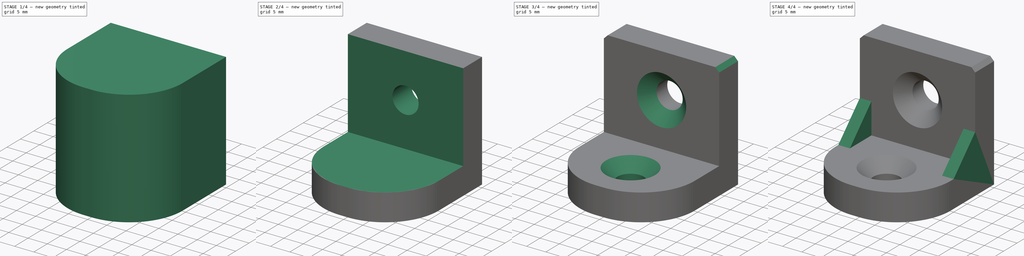
[diagram: build sequence overview — one tinted view per stage of 4, left to right]
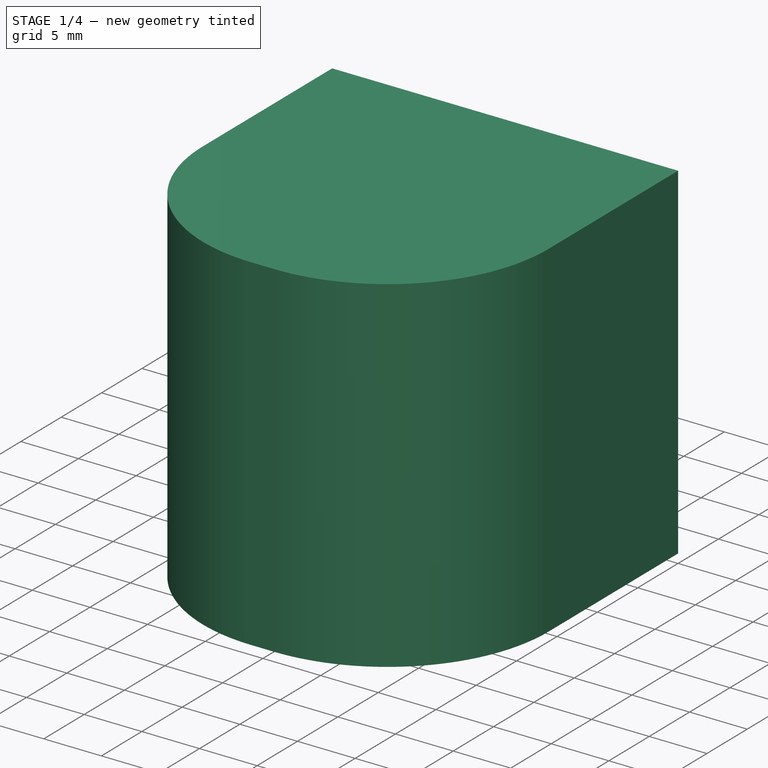
[diagram: stage 1 of 4 — iso view after this stage's code; geometry added in this stage tinted green]
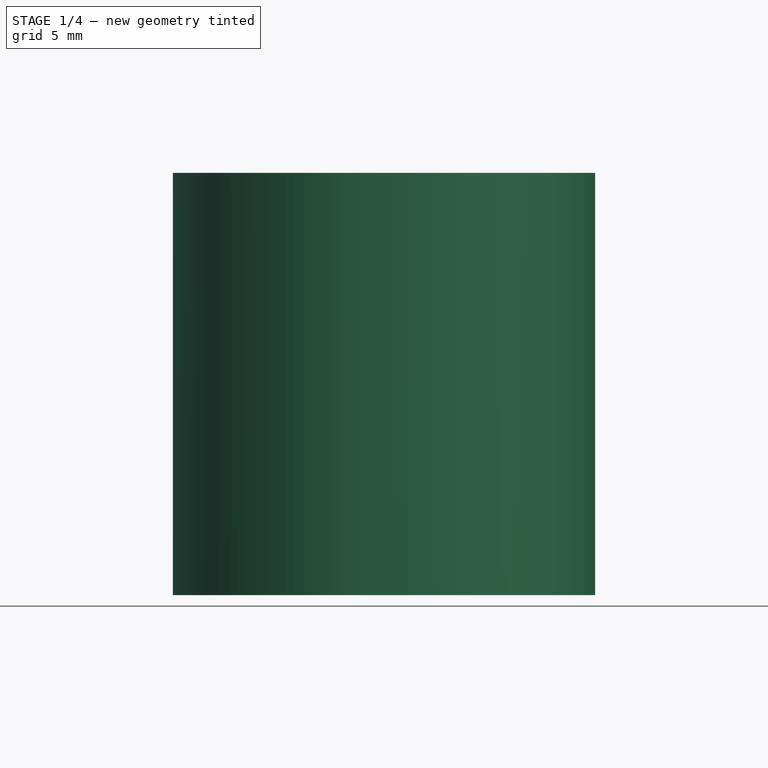
[diagram: stage 1 of 4 — front view after this stage's code; geometry added in this stage tinted green]
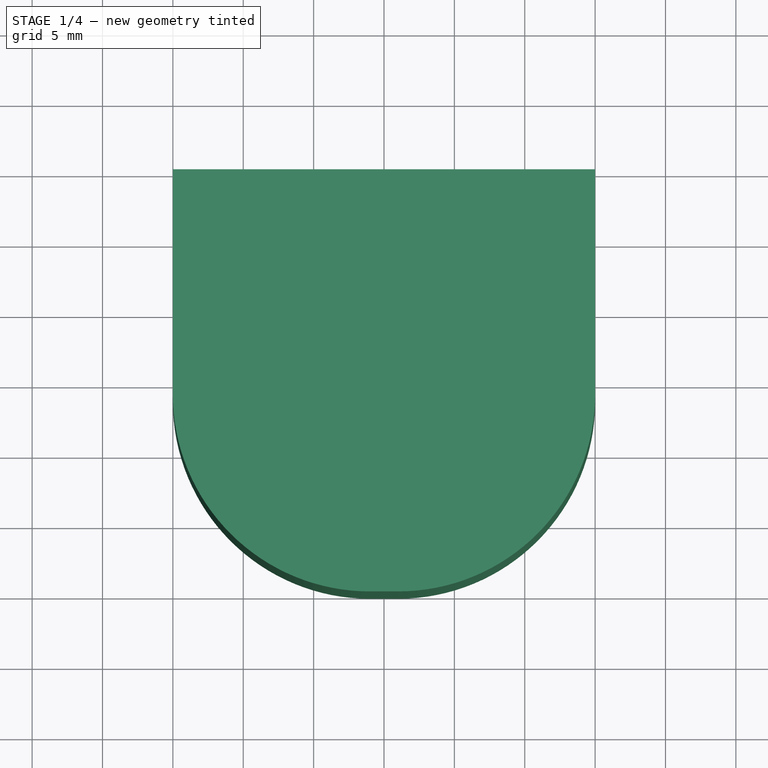
[diagram: stage 1 of 4 — top view after this stage's code; geometry added in this stage tinted green]
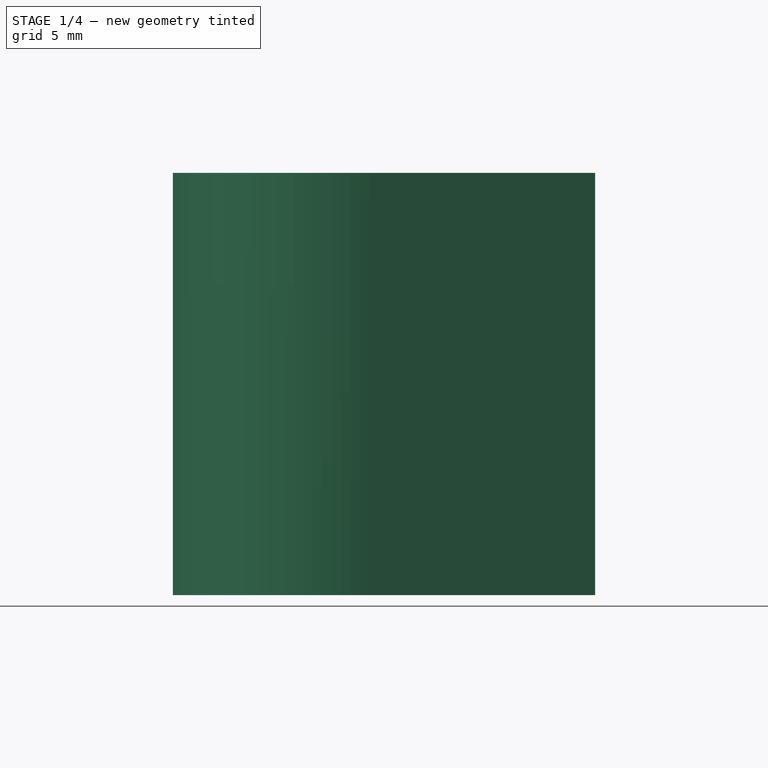
[diagram: stage 1 of 4 — right view after this stage's code; geometry added in this stage tinted green]
FCSTD DOCUMENT  (FreeCAD 1.0R39319 (Git))
Label: 3030__Alm Round Gusset
License: All rights reserved
LicenseURL: https://en.wikipedia.org/wiki/All_rights_reserved
objects: Sketcher::SketchObject×5, PartDesign::Pocket×3, PartDesign::Pad×2, PartDesign::Chamfer×2, PartDesign::Fillet×1, PartDesign::SubtractiveBox×1, PartDesign::Body×1
note: 38 computed .brp shape members not serialized (recipe doc carries the construction recipe); baked Part::Feature solids carry a one-line shape summary decoded from their .brp

FEATURE [Sketcher::SketchObject] Sketch
  ArcFitTolerance = 1e-06
  AttachmentSupport = -> [XZ_Plane]
  FullyConstrained = true
  MakeInternals = false
  MapMode = 5
  Placement = pos=(0,0,0) rot=(1,0,0;1.5708rad)
  sketch-geometry (4):
    g0: LineSegment StartX=-15 StartY=30 StartZ=0 EndX=-15 EndY=0 EndZ=0
    g1: LineSegment StartX=-15 StartY=0 StartZ=0 EndX=15 EndY=0 EndZ=0
    g2: LineSegment StartX=15 StartY=0 StartZ=0 EndX=15 EndY=30 EndZ=0
    g3: LineSegment StartX=15 StartY=30 StartZ=0 EndX=-15 EndY=30 EndZ=0
  constraints (11):
    c: Coincident(g0,g1)
    c: Coincident(g1,g2)
    c: Coincident(g2,g3)
    c: Coincident(g3,g0)
    c: Vertical(g0)
    c: Vertical(g2)
    c: Horizontal(g1)
    c: Horizontal(g3)
    c: Distance(g0,g2) = 30
    c: Distance(g1,g3) = 30
    c: Symmetric(g1,g0,g-1)
FEATURE [PartDesign::Pad] Pad
  Direction = (0,-1,2e-16)
  Length = 30
  Length2 = 10
  Placement = pos=(0,0,0) rot=(1,0,0;1.5708rad)
  Profile = -> Sketch
  ReferenceAxis = -> Sketch [N_Axis]
  Refine = true
  Suppressed = false
  Type = 0
FEATURE [PartDesign::Fillet] Fillet
  Base = -> Pad [Edge10,Edge4]
  BaseFeature = -> Pad
  Placement = pos=(0,0,0) rot=(1,0,0;1.5708rad)
  Radius = 14
  Refine = true
  SupportTransform = false
  Suppressed = false
  UseAllEdges = false
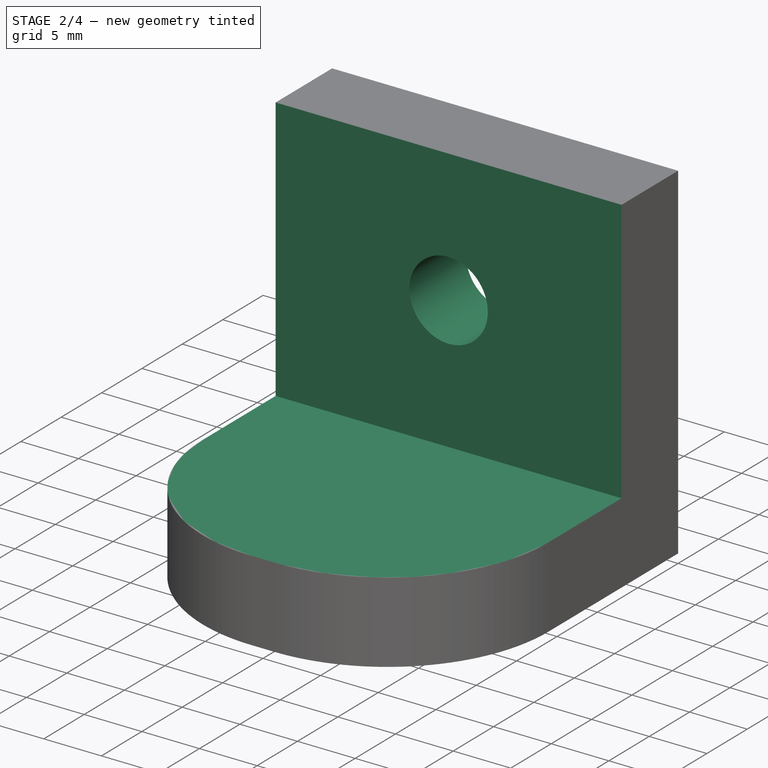
[diagram: stage 2 of 4 — iso view after this stage's code; geometry added in this stage tinted green]
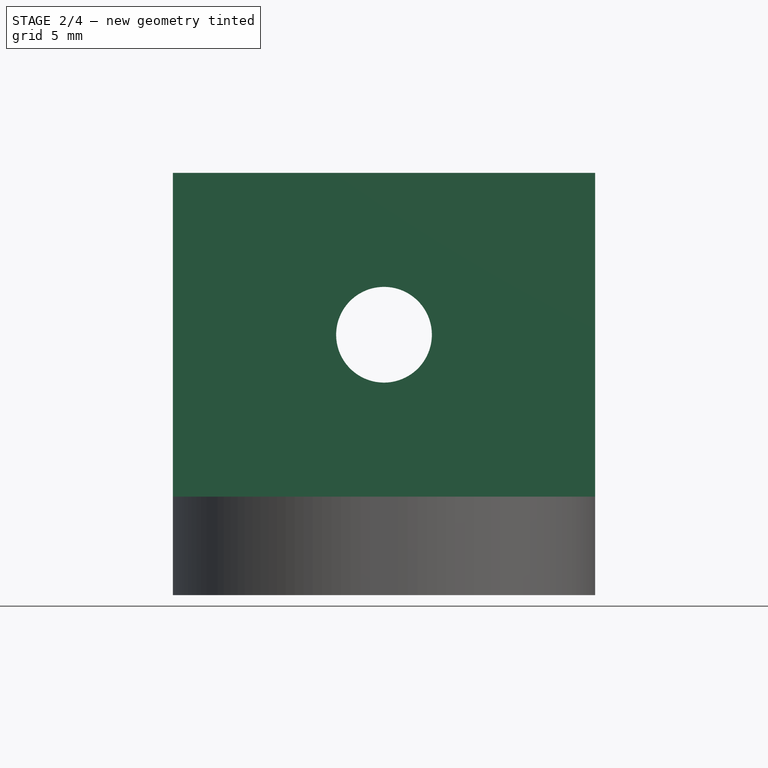
[diagram: stage 2 of 4 — front view after this stage's code; geometry added in this stage tinted green]
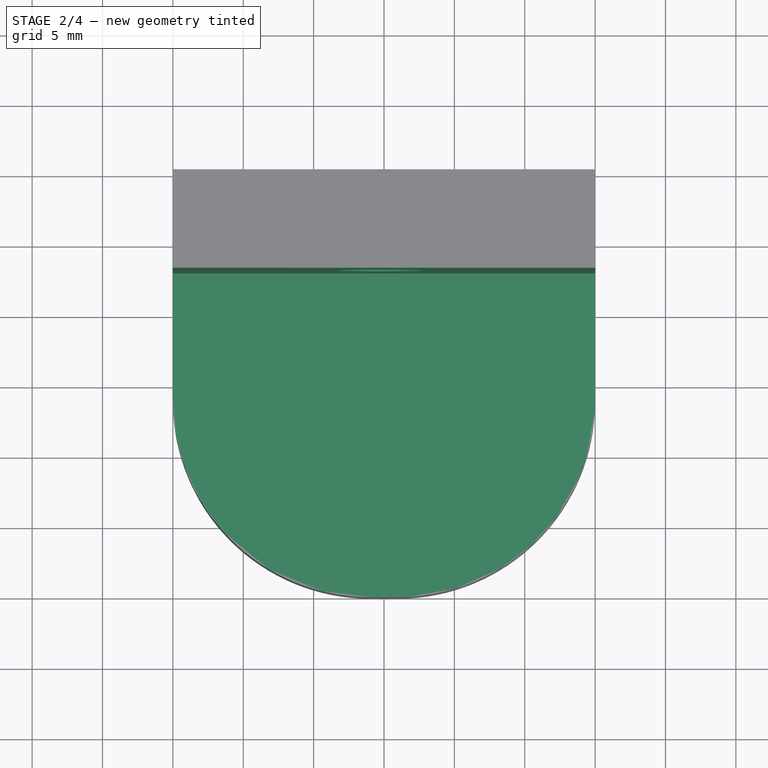
[diagram: stage 2 of 4 — top view after this stage's code; geometry added in this stage tinted green]
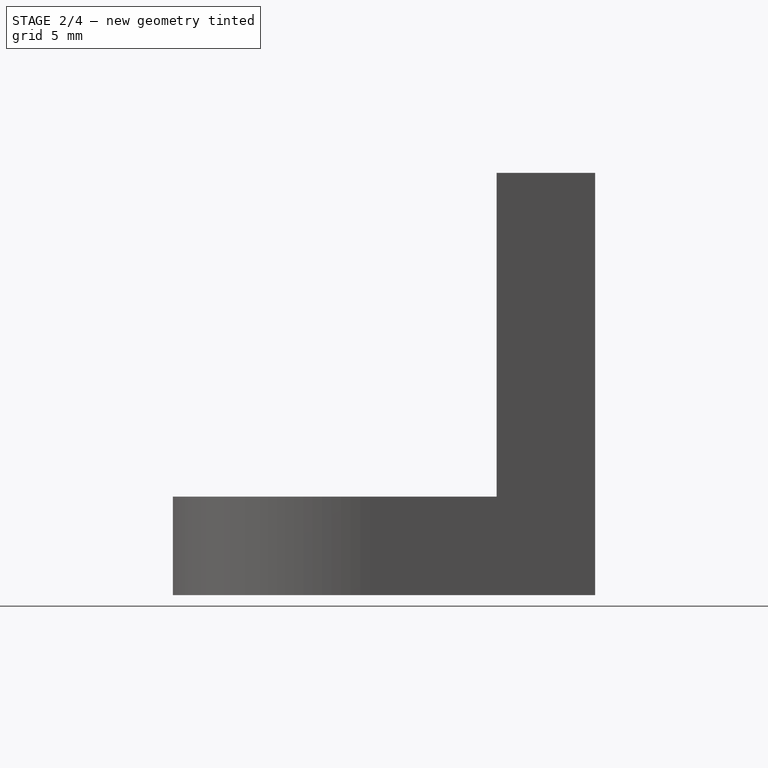
[diagram: stage 2 of 4 — right view after this stage's code; geometry added in this stage tinted green]
FEATURE [PartDesign::SubtractiveBox] Box
  AttacherType = Attacher::AttachEngine3D
  AttachmentOffset = pos=(-15,7,7) rot=(0,0,1;0rad)
  AttachmentSupport = -> [Fillet]
  BaseFeature = -> Fillet
  Height = 30
  Length = 30
  MapMode = 2
  Placement = pos=(-15,-7,7) rot=(1,0,0;1.5708rad)
  Refine = true
  Suppressed = false
  Width = 30
FEATURE [Sketcher::SketchObject] Sketch001
  ArcFitTolerance = 1e-06
  AttachmentOffset = pos=(15,11.5,0) rot=(0,0,1;0rad)
  AttachmentSupport = -> [Box]
  FullyConstrained = true
  MakeInternals = false
  MapMode = 5
  Placement = pos=(0,-7,18.5) rot=(1,0,0;1.5708rad)
  sketch-geometry (1):
    g0: Circle CenterX=0 CenterY=0 CenterZ=0 NormalX=0 NormalY=0 NormalZ=1 AngleXU=0 Radius=3.4
  constraints (2):
    c: Diameter(g0) = 6.8
    c: Coincident(g0,g-1)
FEATURE [PartDesign::Pocket] Pocket
  BaseFeature = -> Box
  Direction = (0,1,-2e-16)
  Length = 5
  Length2 = 5
  Placement = pos=(-15,-7,7) rot=(1,0,0;1.5708rad)
  Profile = -> Sketch001
  ReferenceAxis = -> Sketch001 [N_Axis]
  Refine = true
  Suppressed = false
  Type = 2
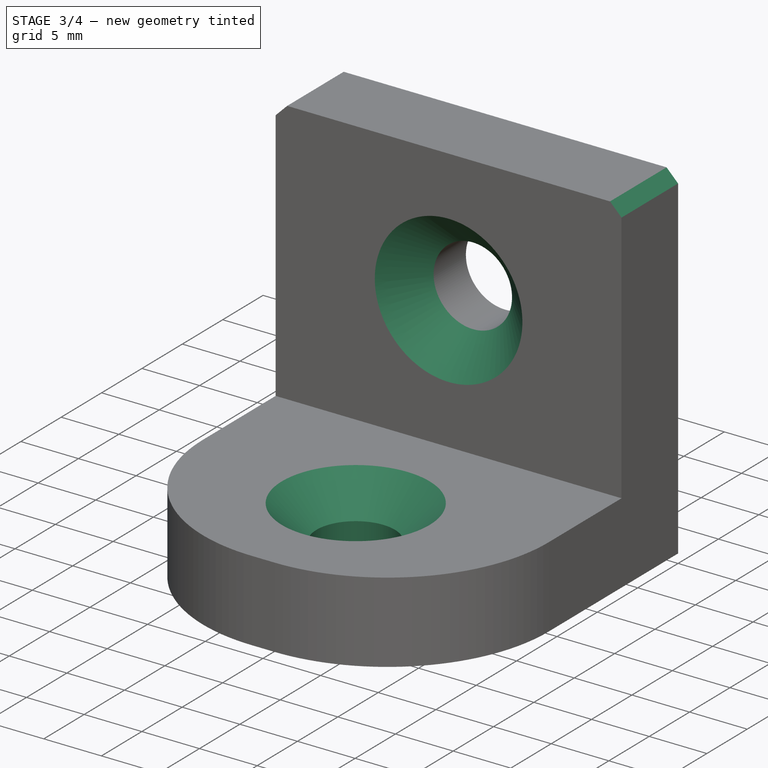
[diagram: stage 3 of 4 — iso view after this stage's code; geometry added in this stage tinted green]
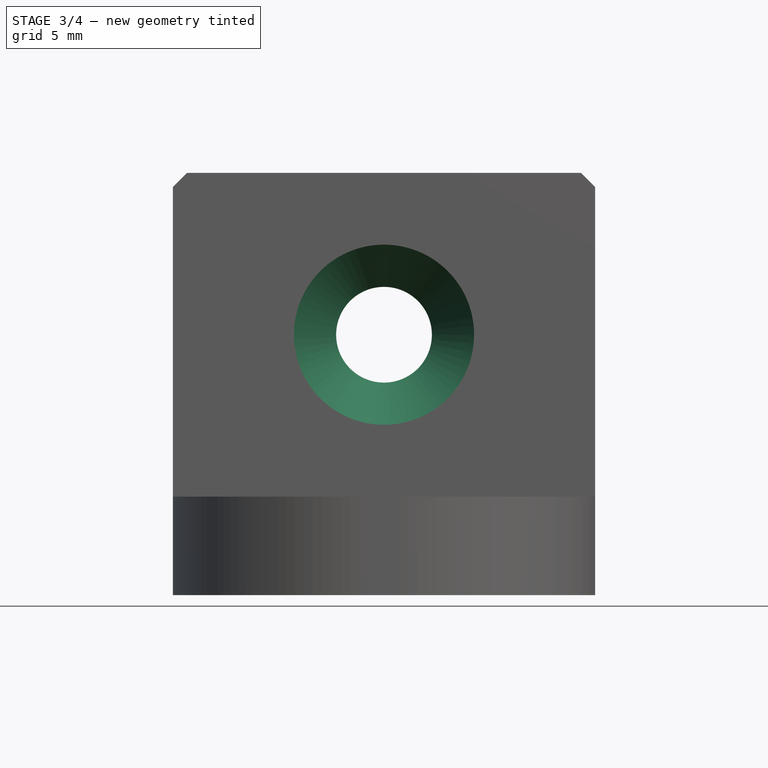
[diagram: stage 3 of 4 — front view after this stage's code; geometry added in this stage tinted green]
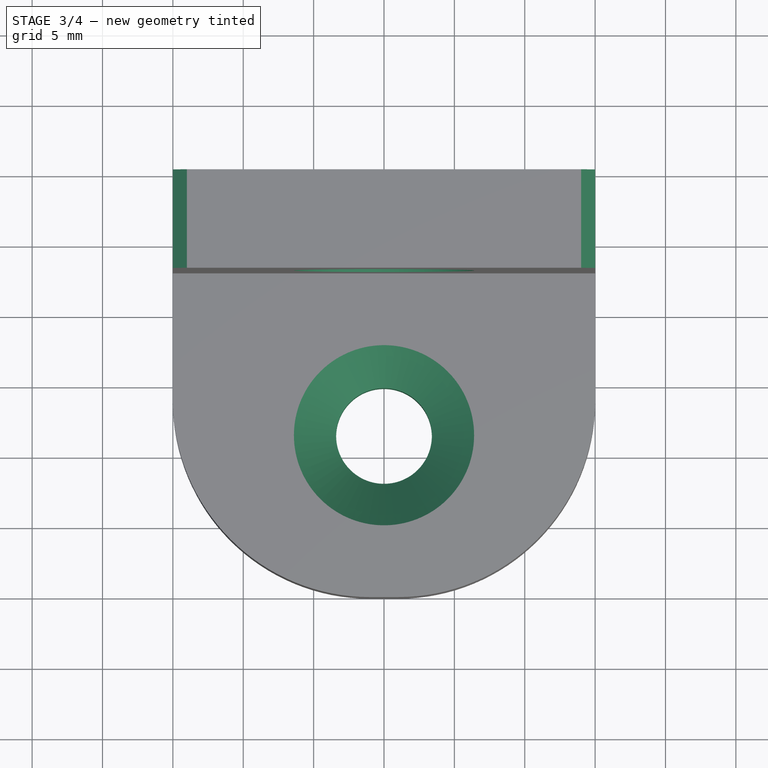
[diagram: stage 3 of 4 — top view after this stage's code; geometry added in this stage tinted green]
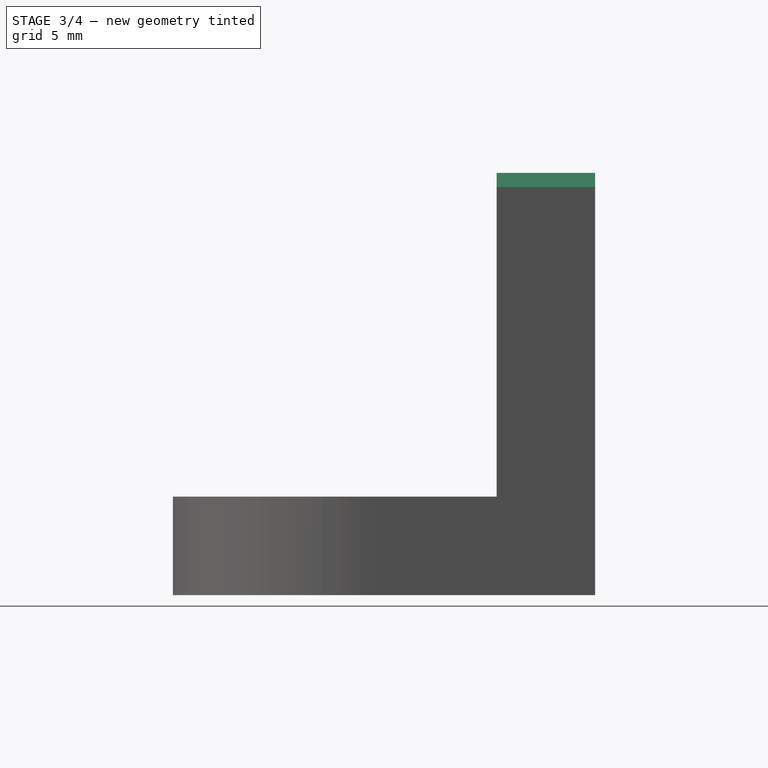
[diagram: stage 3 of 4 — right view after this stage's code; geometry added in this stage tinted green]
FEATURE [Sketcher::SketchObject] Sketch002
  ArcFitTolerance = 1e-06
  AttachmentOffset = pos=(-15,11.5,0) rot=(0,0,1;0rad)
  AttachmentSupport = -> [Pocket]
  FullyConstrained = true
  MakeInternals = false
  MapMode = 5
  Placement = pos=(0,-18.5,7) rot=(0,0,1;3.14159rad)
  sketch-geometry (1):
    g0: Circle CenterX=0 CenterY=0 CenterZ=0 NormalX=0 NormalY=0 NormalZ=1 AngleXU=0 Radius=3.4
  constraints (2):
    c: Diameter(g0) = 6.8
    c: Coincident(g0,g-1)
FEATURE [PartDesign::Pocket] Pocket001
  BaseFeature = -> Pocket
  Direction = (0,0,-1)
  Length = 5
  Length2 = 5
  Placement = pos=(-15,-7,7) rot=(1,0,0;1.5708rad)
  Profile = -> Sketch002
  ReferenceAxis = -> Sketch002 [N_Axis]
  Refine = true
  Suppressed = false
  Type = 2
FEATURE [PartDesign::Chamfer] Chamfer
  Angle = 45
  Base = -> Pocket001 [Edge25,Edge22]
  BaseFeature = -> Pocket001
  ChamferType = 0
  FlipDirection = false
  Placement = pos=(-15,-7,7) rot=(1,0,0;1.5708rad)
  Refine = true
  Size = 3
  Size2 = 1
  SupportTransform = false
  Suppressed = false
  UseAllEdges = false
FEATURE [PartDesign::Chamfer] Chamfer001
  Angle = 45
  Base = -> Chamfer [Edge20,Edge17]
  BaseFeature = -> Chamfer
  ChamferType = 0
  FlipDirection = false
  Placement = pos=(-15,-7,7) rot=(1,0,0;1.5708rad)
  Refine = true
  Size = 1
  Size2 = 1
  SupportTransform = false
  Suppressed = false
  UseAllEdges = false
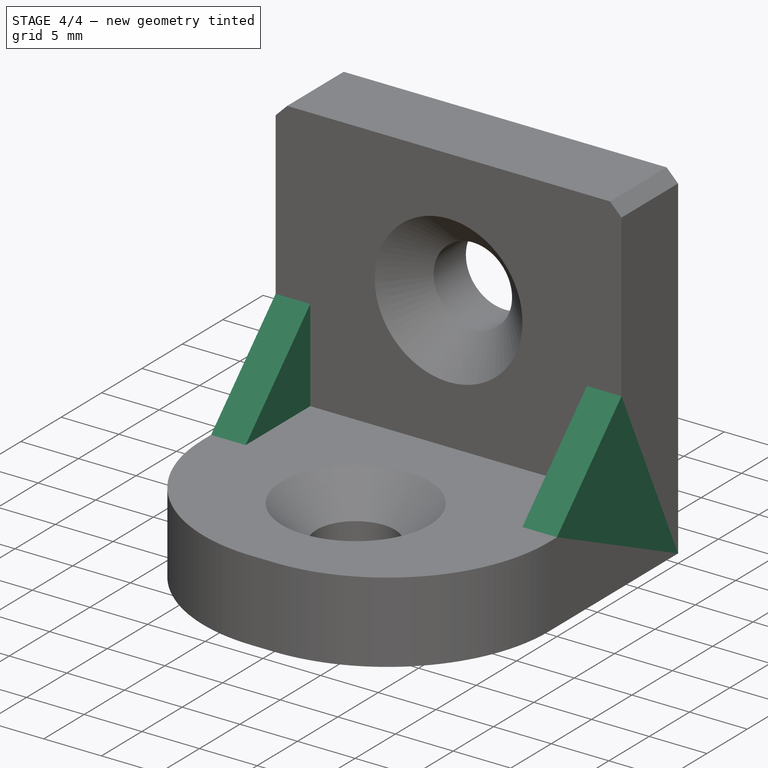
[diagram: stage 4 of 4 — iso view after this stage's code; geometry added in this stage tinted green]
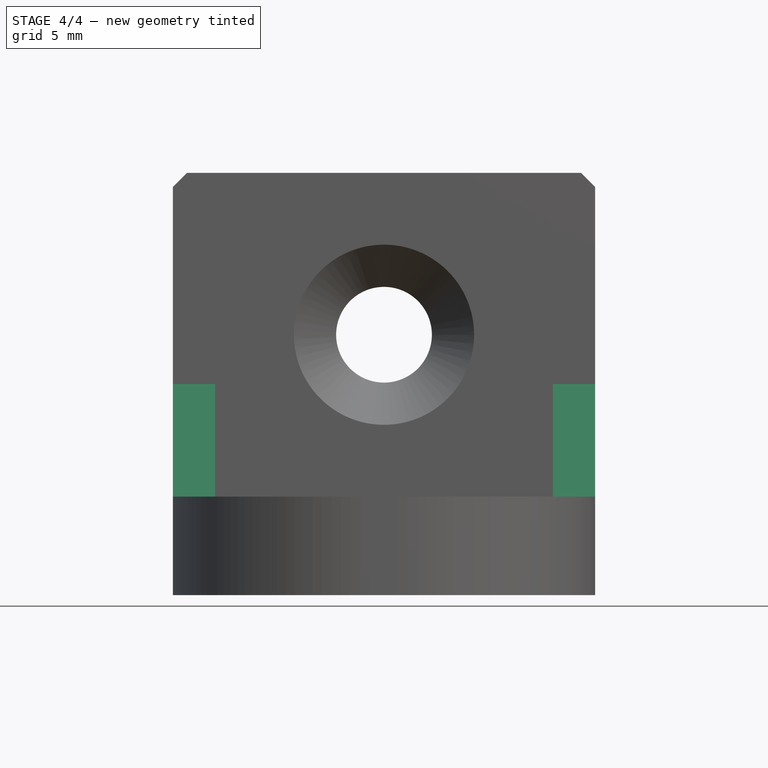
[diagram: stage 4 of 4 — front view after this stage's code; geometry added in this stage tinted green]
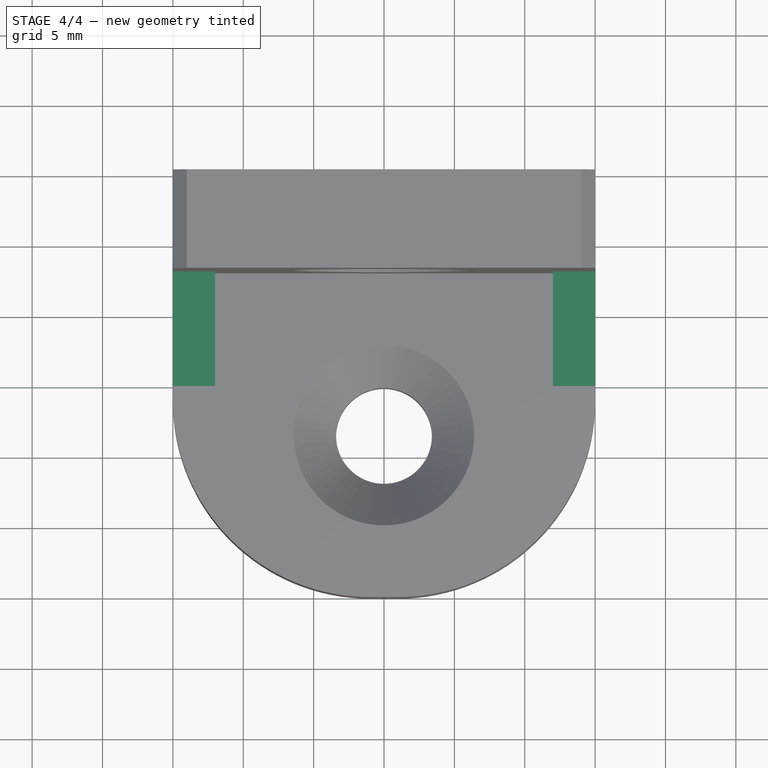
[diagram: stage 4 of 4 — top view after this stage's code; geometry added in this stage tinted green]
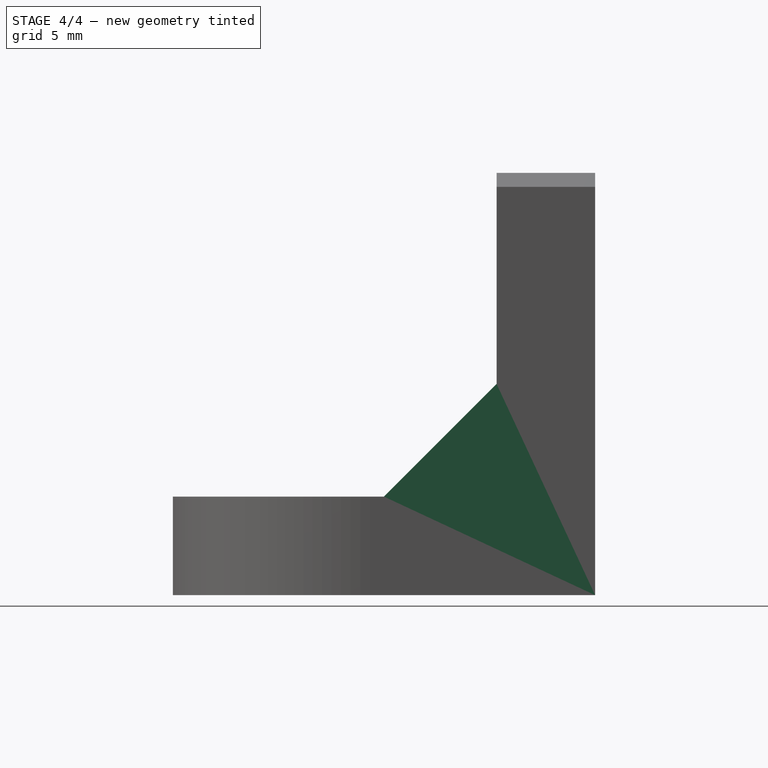
[diagram: stage 4 of 4 — right view after this stage's code; geometry added in this stage tinted green]
FEATURE [Sketcher::SketchObject] Sketch003
  ArcFitTolerance = 1e-06
  AttachmentOffset = pos=(15,0,0) rot=(0,0,1;0rad)
  AttachmentSupport = -> [Chamfer001]
  ExternalGeometry = -> [Chamfer001]
  FullyConstrained = true
  MakeInternals = false
  MapMode = 5
  Placement = pos=(0,-7,7) rot=(1,0,0;1.5708rad)
  sketch-geometry (8):
    g0: LineSegment StartX=15 StartY=0 StartZ=0 EndX=15 EndY=8 EndZ=0
    g1: LineSegment StartX=15 StartY=8 StartZ=0 EndX=12 EndY=8 EndZ=0
    g2: LineSegment StartX=12 StartY=8 StartZ=0 EndX=12 EndY=0 EndZ=0
    g3: LineSegment StartX=12 StartY=0 StartZ=0 EndX=15 EndY=0 EndZ=0
    g4: LineSegment StartX=-15 StartY=0 StartZ=0 EndX=-12 EndY=0 EndZ=0
    g5: LineSegment StartX=-12 StartY=0 StartZ=0 EndX=-12 EndY=8 EndZ=0
    g6: LineSegment StartX=-12 StartY=8 StartZ=0 EndX=-15 EndY=8 EndZ=0
    g7: LineSegment StartX=-15 StartY=8 StartZ=0 EndX=-15 EndY=0 EndZ=0
  constraints (23):
    c: Coincident(g0,g1)
    c: Coincident(g1,g2)
    c: Coincident(g2,g3)
    c: Coincident(g3,g0)
    c: Vertical(g0)
    c: Vertical(g2)
    c: Horizontal(g1)
    c: Horizontal(g3)
    c: PointOnObject(g0,g-1)
    c: Coincident(g4,g5)
    c: Coincident(g5,g6)
    c: Coincident(g6,g7)
    c: Coincident(g7,g4)
    c: Horizontal(g4)
    c: Horizontal(g6)
    c: Vertical(g5)
    c: Vertical(g7)
    c: PointOnObject(g4,g-1)
    c: Symmetric(g1,g5,g-2)
    c: Distance(g1,g1) = 3
    c: DistanceY(g0,g0) = 8
    c: PointOnObject(g0,g-3)
    c: Equal(g6,g1)
FEATURE [PartDesign::Pad] Pad001
  BaseFeature = -> Chamfer001
  Direction = (0,-1,2e-16)
  Length = 8
  Length2 = 10
  Placement = pos=(-15,-7,7) rot=(1,0,0;1.5708rad)
  Profile = -> Sketch003
  ReferenceAxis = -> Sketch003 [N_Axis]
  Refine = true
  Suppressed = false
  Type = 0
FEATURE [Sketcher::SketchObject] Sketch004
  ArcFitTolerance = 1e-06
  AttachmentSupport = -> [Pad001]
  FullyConstrained = true
  MakeInternals = false
  MapMode = 5
  Placement = pos=(15,-7,7) rot=(0.707107,0,0.707107;3.14159rad)
  sketch-geometry (3):
    g0: LineSegment StartX=0 StartY=8 StartZ=0 EndX=8 EndY=0 EndZ=0
    g1: LineSegment StartX=8 StartY=0 StartZ=0 EndX=8 EndY=8 EndZ=0
    g2: LineSegment StartX=8 StartY=8 StartZ=0 EndX=0 EndY=8 EndZ=0
  constraints (9):
    c: Coincident(g0,g1)
    c: Vertical(g1)
    c: Coincident(g1,g2)
    c: Coincident(g2,g0)
    c: PointOnObject(g0,g-2)
    c: PointOnObject(g0,g-1)
    c: DistanceX(g-1,g0) = 8
    c: Horizontal(g2)
    c: Equal(g2,g1)
FEATURE [PartDesign::Pocket] Pocket002
  BaseFeature = -> Pad001
  Direction = (-1,0,2e-16)
  Length = 5
  Length2 = 5
  Placement = pos=(-15,-7,7) rot=(1,0,0;1.5708rad)
  Profile = -> Sketch004
  ReferenceAxis = -> Sketch004 [N_Axis]
  Refine = true
  Suppressed = false
  Type = 1
FEATURE [PartDesign::Body] Body
  AllowCompound = false
  Group = -> [Sketch,Pad,Fillet,Box,Sketch001,Pocket,Sketch002,Pocket001,Chamfer,Chamfer001,Sketch003,Pad001,Sketch004,Pocket002]
  Origin = -> Origin
  Tip = -> Pocket002
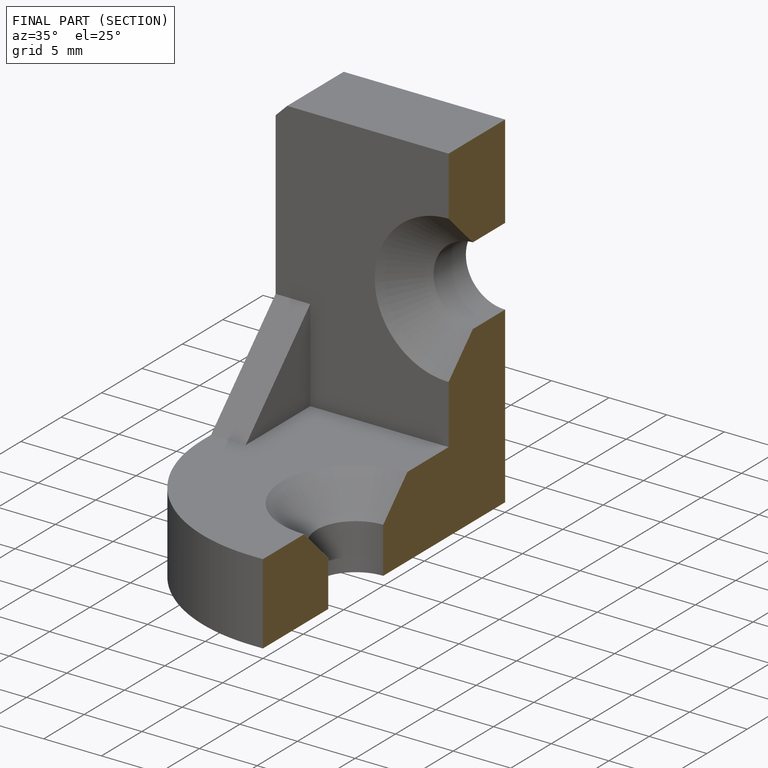
[diagram: finished part — half-section view (interior)]
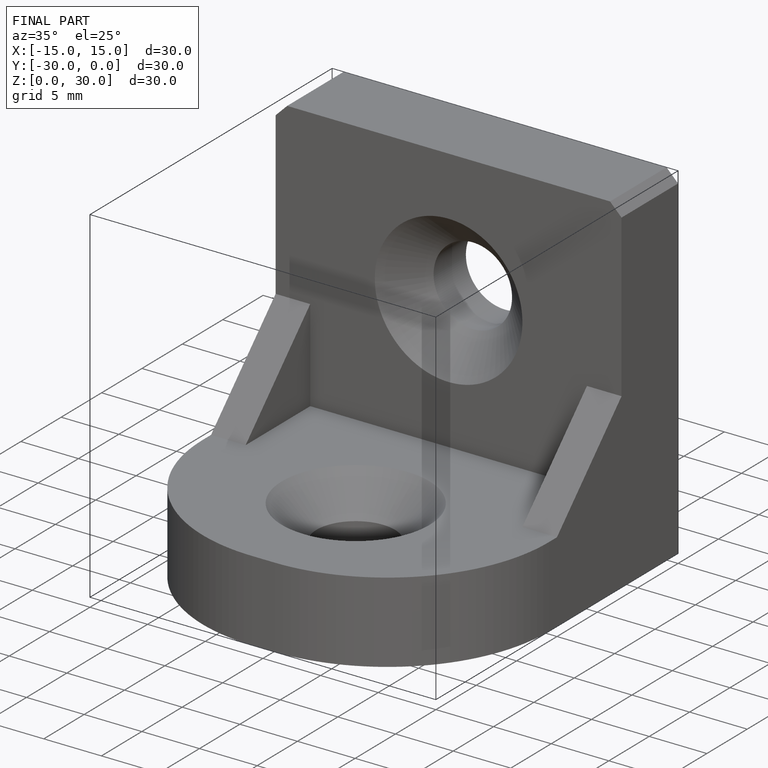
[diagram: finished part — iso view with bounding-box wireframe]
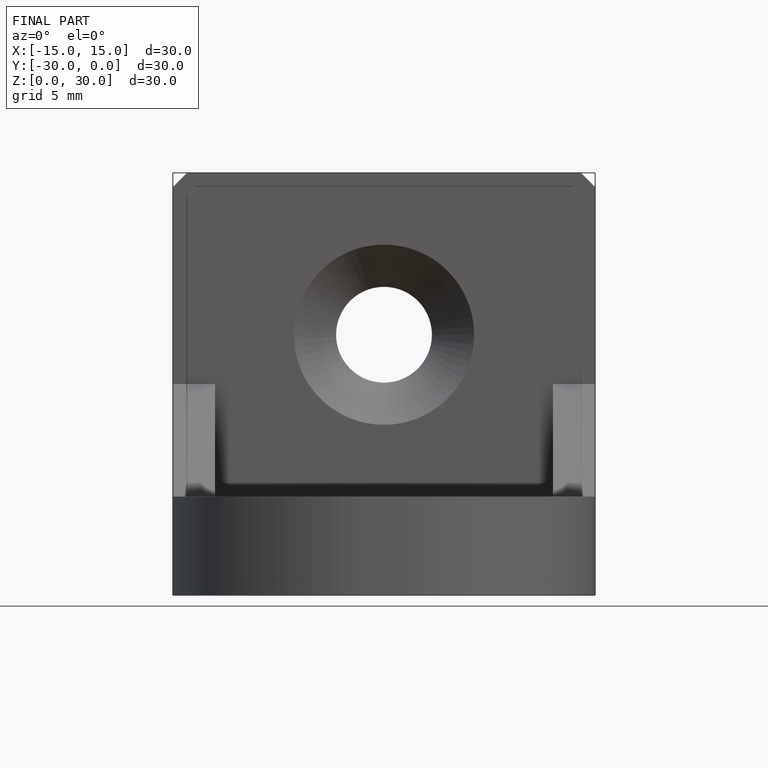
[diagram: finished part — front view with bounding-box wireframe]
